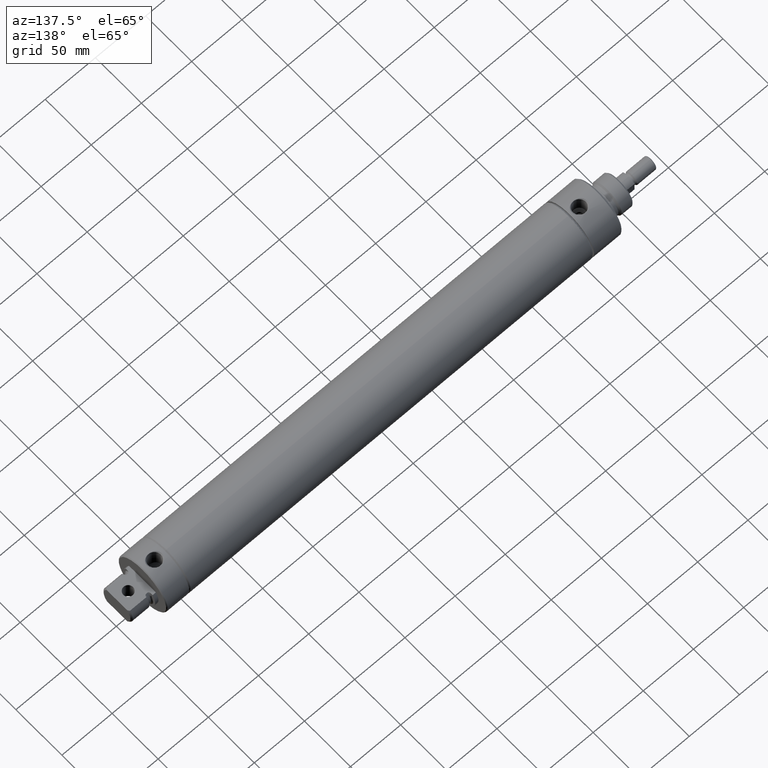
[diagram: clean part render]
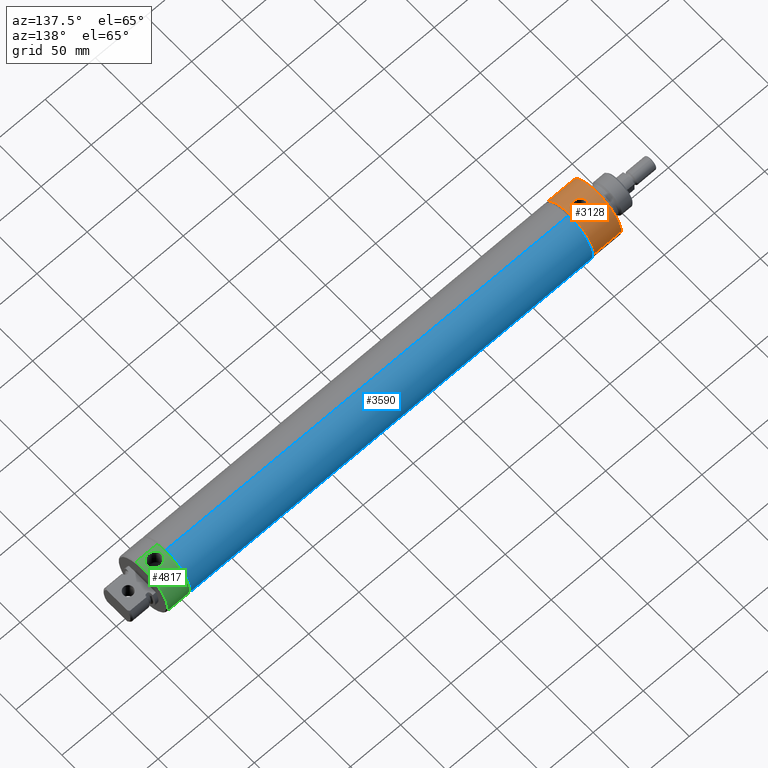
[diagram: same view with three faces highlighted in distinct colors, each labeled with its STEP entity id]
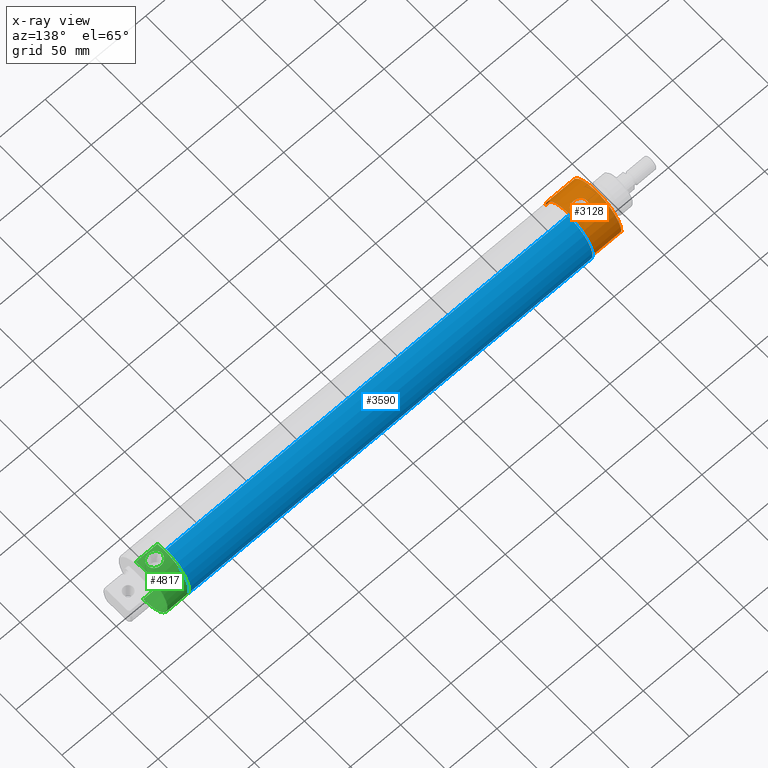
[diagram: x-ray of the same camera — body ghosted, the three highlighted faces saturated]
A machine part, auxiliary view with three faces highlighted in distinct colors.
The next image is the same camera in x-ray (body ghosted, the three faces saturated) — at least one of them is partly hidden behind the body in this view.
Their STEP definitions:

[orange] entity #3128 — the highlighted cylindrical surface (edge-blend (fillet) strip) has radius 26.543 mm, axis along (1, 0, 0).
#74 = EDGE_CURVE ( 'NONE', #5462, #816, #84, .T. ) ;
#84 = CIRCLE ( 'NONE', #3743, 26.54299999999999926 ) ;
#184 = CARTESIAN_POINT ( 'NONE',  ( 39.62400000000000233, 25.73051365881612185, 6.517017404724117391 ) ) ;
#335 = CARTESIAN_POINT ( 'NONE',  ( 43.14023609710901752, 25.91884662458859268, 5.727104617331871594 ) ) ;
#362 = CARTESIAN_POINT ( 'NONE',  ( 46.88698367355252117, 26.52865988579176104, 0.9013957518397684998 ) ) ;
#406 = CARTESIAN_POINT ( 'NONE',  ( 36.28423554758332870, 25.89727713613367044, 5.828956841975059255 ) ) ;
#415 = B_SPLINE_CURVE_WITH_KNOTS ( 'NONE', 3,
 ( #1912, #3640, #5321, #2835, #3157, #4550, #639, #1943, #4126, #2334 ),
 .UNSPECIFIED., .F., .F.,
 ( 4, 2, 2, 2, 4 ),
 ( 0.8772249320722800281, 0.9079186990542100766, 0.9386124660361400140, 0.9693062330180699515, 1.000000000000000000 ),
 .UNSPECIFIED. ) ;
#438 = CARTESIAN_POINT ( 'NONE',  ( 45.87092863978182322, 26.32442339647326079, 3.404663498634873608 ) ) ;
#558 = EDGE_LOOP ( 'NONE', ( #3817, #4529, #1038, #5351 ) ) ;
#559 = CARTESIAN_POINT ( 'NONE',  ( 22.09799999999999898, 0.000000000000000000, -26.54299999999999926 ) ) ;
#561 = DIRECTION ( 'NONE',  ( 1.000000000000000000, 0.000000000000000000, 0.000000000000000000 ) ) ;
#639 = CARTESIAN_POINT ( 'NONE',  ( 36.16681874928035256, 25.91272307576314660, -5.755330739610351465 ) ) ;
#711 = DIRECTION ( 'NONE',  ( 1.000000000000000000, 0.000000000000000000, 0.000000000000000000 ) ) ;
#781 = CARTESIAN_POINT ( 'NONE',  ( 46.11502764711448066, 26.37086896340863262, 3.024088346869883370 ) ) ;
#806 = CARTESIAN_POINT ( 'NONE',  ( 46.53108616614476034, 26.45338835064874417, 2.216681218024654676 ) ) ;
#816 = VERTEX_POINT ( 'NONE', #1741 ) ;
#822 = CARTESIAN_POINT ( 'NONE',  ( 32.62633217642768102, 26.47240357500205832, 1.960031679080467715 ) ) ;
#855 = CARTESIAN_POINT ( 'NONE',  ( 43.92838475605676507, 26.01300193777965220, -5.282817252091125404 ) ) ;
#862 = EDGE_CURVE ( 'NONE', #5462, #1008, #4026, .T. ) ;
#876 = CARTESIAN_POINT ( 'NONE',  ( 37.92050829696766812, 25.77377487747021334, 6.344456837189471621 ) ) ;
#895 = LINE ( 'NONE', #3960, #4162 ) ;
#1008 = VERTEX_POINT ( 'NONE', #4201 ) ;
#1038 = ORIENTED_EDGE ( 'NONE', *, *, #862, .F. ) ;
#1162 = DIRECTION ( 'NONE',  ( 1.000000000000000000, 0.000000000000000000, 0.000000000000000000 ) ) ;
#1168 = AXIS2_PLACEMENT_3D ( 'NONE', #2816, #711, #4561 ) ;
#1194 = CARTESIAN_POINT ( 'NONE',  ( 32.28491092509429450, 26.54477569535378123, -0.06225261957188190504 ) ) ;
#1216 = CARTESIAN_POINT ( 'NONE',  ( 39.62400000000000233, 25.73051365881612185, -6.517017404724117391 ) ) ;
#1228 = CARTESIAN_POINT ( 'NONE',  ( 44.99675941643322119, 26.17020661830747841, 4.442019751701123731 ) ) ;
#1249 = CARTESIAN_POINT ( 'NONE',  ( 34.14803566690792280, 26.18495622756673313, -4.366847542107852753 ) ) ;
#1275 = CARTESIAN_POINT ( 'NONE',  ( 41.87069624169751592, 25.80575643588554868, -6.213984018549664867 ) ) ;
#1463 = CARTESIAN_POINT ( 'NONE',  ( 34.67366194043339789, 26.10610382281469910, -4.796060069725950115 ) ) ;
#1471 = CARTESIAN_POINT ( 'NONE',  ( 40.53308354948080705, 25.74025623567958476, 6.478992480507668184 ) ) ;
#1620 = CARTESIAN_POINT ( 'NONE',  ( 41.43088959207262434, 25.77819679799991093, -6.327503864735300354 ) ) ;
#1643 = CARTESIAN_POINT ( 'NONE',  ( 44.99207615910428615, 26.16961955088395797, -4.446643277002229944 ) ) ;
#1667 = CARTESIAN_POINT ( 'NONE',  ( 45.31132268313201905, 26.22336074910520409, -4.122228526243777225 ) ) ;
#1692 = CARTESIAN_POINT ( 'NONE',  ( 46.89776055856941639, 26.53060152856586384, -0.9159533875551781890 ) ) ;
#1741 = CARTESIAN_POINT ( 'NONE',  ( 22.09799999999999187, 3.250579998976819458E-15, 26.54299999999999926 ) ) ;
#1821 = CARTESIAN_POINT ( 'NONE',  ( 39.62400000000000233, 25.73051365881612185, 6.517017404724117391 ) ) ;
#1912 = CARTESIAN_POINT ( 'NONE',  ( 39.62400000000000233, 25.73051365881612185, -6.517017404724117391 ) ) ;
#1943 = CARTESIAN_POINT ( 'NONE',  ( 35.38663359703360811, 26.00451667453823745, -5.325314866969163674 ) ) ;
#2030 = CIRCLE ( 'NONE', #2472, 26.54299999999999926 ) ;
#2033 = CARTESIAN_POINT ( 'NONE',  ( 46.22675714645677658, 26.39271146785785760, 2.827737344637569983 ) ) ;
#2083 = CARTESIAN_POINT ( 'NONE',  ( 40.07721804113106145, 25.73061452309766395, -6.517118269005661269 ) ) ;
#2134 = CARTESIAN_POINT ( 'NONE',  ( 39.62400000000000233, 25.73051365881612185, -6.517017404724117391 ) ) ;
#2204 = B_SPLINE_CURVE_WITH_KNOTS ( 'NONE', 3,
 ( #2495, #1249, #2443, #4204, #3779, #5480, #2542, #3725, #5009, #1194, #4180, #2931, #2468, #822, #3332, #5038, #4623, #2517, #4230, #406, #5506, #876, #4368, #3848, #5163, #1821 ),
 .UNSPECIFIED., .F., .F.,
 ( 4, 2, 2, 2, 2, 2, 2, 2, 2, 2, 2, 2, 4 ),
 ( 0.000000000000000000, 0.04716194033566645932, 0.07074291050349970633, 0.09432388067133296028, 0.1179048508391662142, 0.1414858210069994959, 0.1650667911748327499, 0.1886477613426660316, 0.2358097016783328170, 0.2829716420139996025, 0.3301335823496663879, 0.3537145525174997807, 0.3772955226853331734 ),
 .UNSPECIFIED. ) ;
#2334 = CARTESIAN_POINT ( 'NONE',  ( 34.67366194043339789, 26.10610382281469910, -4.796060069725950115 ) ) ;
#2355 = VECTOR ( 'NONE', #1162, 1000.000000000000000 ) ;
#2443 = CARTESIAN_POINT ( 'NONE',  ( 33.67879954980388391, 26.26758085500738105, -3.856378658306673479 ) ) ;
#2451 = CARTESIAN_POINT ( 'NONE',  ( 46.68796492407823706, 26.48628596771400012, 1.789194125948193825 ) ) ;
#2459 = FACE_BOUND ( 'NONE', #2843, .T. ) ;
#2468 = CARTESIAN_POINT ( 'NONE',  ( 32.43327580948447775, 26.51300976933473308, 1.301432608183236361 ) ) ;
#2472 = AXIS2_PLACEMENT_3D ( 'NONE', #4023, #2761, #4508 ) ;
#2495 = CARTESIAN_POINT ( 'NONE',  ( 34.67366194043339789, 26.10610382281469910, -4.796060069725950115 ) ) ;
#2517 = CARTESIAN_POINT ( 'NONE',  ( 34.55067300006395214, 26.12158029173147256, 4.736798753820318453 ) ) ;
#2542 = CARTESIAN_POINT ( 'NONE',  ( 32.55639133899532567, 26.48710293797914161, -1.752659992441376602 ) ) ;
#2547 = CARTESIAN_POINT ( 'NONE',  ( 46.95296728518824381, 26.54291881011256038, -0.4617035219768674259 ) ) ;
#2586 = DIRECTION ( 'NONE',  ( 0.000000000000000000, 0.000000000000000000, -1.000000000000000000 ) ) ;
#2653 = DIRECTION ( 'NONE',  ( 1.000000000000000000, 0.000000000000000000, 0.000000000000000000 ) ) ;
#2761 = DIRECTION ( 'NONE',  ( 1.000000000000000000, 0.000000000000000000, 0.000000000000000000 ) ) ;
#2816 = CARTESIAN_POINT ( 'NONE',  ( 58.72480000000000189, 0.000000000000000000, 0.000000000000000000 ) ) ;
#2835 = CARTESIAN_POINT ( 'NONE',  ( 37.84968840886777031, 25.77607714198116895, -6.333965639445456652 ) ) ;
#2842 = VERTEX_POINT ( 'NONE', #1463 ) ;
#2843 = EDGE_LOOP ( 'NONE', ( #2901, #3328, #4300 ) ) ;
#2863 = CARTESIAN_POINT ( 'NONE',  ( 45.73784385381399176, 26.29972732941873659, 3.589755288864965088 ) ) ;
#2901 = ORIENTED_EDGE ( 'NONE', *, *, #4128, .F. ) ;
#2907 = EDGE_CURVE ( 'NONE', #816, #3744, #895, .T. ) ;
#2931 = CARTESIAN_POINT ( 'NONE',  ( 32.36567947375057486, 26.52770875438563891, 0.9653175358748752322 ) ) ;
#2955 = CARTESIAN_POINT ( 'NONE',  ( 44.30304285166340605, 26.06436966748618644, 5.024269961739775248 ) ) ;
#3128 = ADVANCED_FACE ( 'NONE', ( #4170, #2459 ), #4109, .T. ) ;
#3157 = CARTESIAN_POINT ( 'NONE',  ( 37.41450014212166764, 25.80333924285662661, -6.224149178456367615 ) ) ;
#3309 = CARTESIAN_POINT ( 'NONE',  ( 46.95375088751951864, 26.54302493654332551, 0.2199244984061151931 ) ) ;
#3328 = ORIENTED_EDGE ( 'NONE', *, *, #4165, .F. ) ;
#3332 = CARTESIAN_POINT ( 'NONE',  ( 32.75159804456176005, 26.44656692411314225, 2.280908792111675076 ) ) ;
#3339 = CARTESIAN_POINT ( 'NONE',  ( 40.53324477620606814, 25.74062261042611510, -6.479468676788942005 ) ) ;
#3386 = CARTESIAN_POINT ( 'NONE',  ( 46.94037900167688804, 26.54010857759597286, 0.4490808701384566004 ) ) ;
#3496 = CARTESIAN_POINT ( 'NONE',  ( 49.19979999999998910, 3.250579998976819458E-15, 26.54299999999999926 ) ) ;
#3640 = CARTESIAN_POINT ( 'NONE',  ( 39.17878481677676206, 25.73056746160453301, -6.517071207512525888 ) ) ;
#3725 = CARTESIAN_POINT ( 'NONE',  ( 32.38780256168129057, 26.52284727543497667, -1.087020712407376077 ) ) ;
#3731 = CARTESIAN_POINT ( 'NONE',  ( 46.52701407691371571, 26.45257656201705387, -2.226313498767042098 ) ) ;
#3743 = AXIS2_PLACEMENT_3D ( 'NONE', #3774, #2653, #2586 ) ;
#3744 = VERTEX_POINT ( 'NONE', #3496 ) ;
#3774 = CARTESIAN_POINT ( 'NONE',  ( 22.09799999999999898, 0.000000000000000000, 0.000000000000000000 ) ) ;
#3779 = CARTESIAN_POINT ( 'NONE',  ( 32.94884617569560703, 26.40689928717717905, -2.702456018839178409 ) ) ;
#3810 = CARTESIAN_POINT ( 'NONE',  ( 46.12167722655126312, 26.37171614995926916, -3.037119387416316485 ) ) ;
#3817 = ORIENTED_EDGE ( 'NONE', *, *, #2907, .T. ) ;
#3833 = CARTESIAN_POINT ( 'NONE',  ( 45.31289318317416104, 26.22361105190517350, 4.120829919841498601 ) ) ;
#3848 = CARTESIAN_POINT ( 'NONE',  ( 38.93597926657172081, 25.73601514087748754, 6.495174511715475774 ) ) ;
#3960 = CARTESIAN_POINT ( 'NONE',  ( 22.09799999999999187, 3.250579998976819458E-15, 26.54299999999999926 ) ) ;
#4000 = CARTESIAN_POINT ( 'NONE',  ( 22.09799999999999898, 0.000000000000000000, -26.54299999999999926 ) ) ;
#4023 = CARTESIAN_POINT ( 'NONE',  ( 49.19980000000000331, 0.000000000000000000, 0.000000000000000000 ) ) ;
#4026 = LINE ( 'NONE', #4000, #2355 ) ;
#4109 = CYLINDRICAL_SURFACE ( 'NONE', #1168, 26.54299999999999926 ) ;
#4126 = CARTESIAN_POINT ( 'NONE',  ( 35.01574817022682851, 26.05478538001531419, -5.075398646864020868 ) ) ;
#4128 = EDGE_CURVE ( 'NONE', #5189, #2842, #415, .T. ) ;
#4162 = VECTOR ( 'NONE', #561, 1000.000000000000000 ) ;
#4165 = EDGE_CURVE ( 'NONE', #4564, #5189, #5008, .T. ) ;
#4170 = FACE_OUTER_BOUND ( 'NONE', #558, .T. ) ;
#4180 = CARTESIAN_POINT ( 'NONE',  ( 32.29151376238034743, 26.54348114616891152, 0.2840323935461561700 ) ) ;
#4186 = CARTESIAN_POINT ( 'NONE',  ( 43.92731059367079638, 26.01271120839635742, 5.283252968256816118 ) ) ;
#4201 = CARTESIAN_POINT ( 'NONE',  ( 49.19980000000000331, 0.000000000000000000, -26.54299999999999926 ) ) ;
#4204 = CARTESIAN_POINT ( 'NONE',  ( 33.11645612914559678, 26.37378478750274979, -3.005967972000867849 ) ) ;
#4230 = CARTESIAN_POINT ( 'NONE',  ( 35.10097499541237198, 26.03954122248297409, 5.157031345886784912 ) ) ;
#4261 = CARTESIAN_POINT ( 'NONE',  ( 43.13998674297809544, 25.91896691070996894, -5.727458655864020365 ) ) ;
#4300 = ORIENTED_EDGE ( 'NONE', *, *, #4689, .F. ) ;
#4368 = CARTESIAN_POINT ( 'NONE',  ( 38.25579052833682425, 25.75774150499447757, 6.408787762471386706 ) ) ;
#4508 = DIRECTION ( 'NONE',  ( 0.000000000000000000, 0.000000000000000000, -1.000000000000000000 ) ) ;
#4529 = ORIENTED_EDGE ( 'NONE', *, *, #4941, .F. ) ;
#4550 = CARTESIAN_POINT ( 'NONE',  ( 36.57503296546469329, 25.87134741278356032, -5.935206321155209075 ) ) ;
#4561 = DIRECTION ( 'NONE',  ( 0.000000000000000000, -1.000000000000000000, -6.123233995736766036E-17 ) ) ;
#4564 = VERTEX_POINT ( 'NONE', #5432 ) ;
#4623 = CARTESIAN_POINT ( 'NONE',  ( 33.60536259035524154, 26.27955066059942979, 3.762899522752653603 ) ) ;
#4627 = CARTESIAN_POINT ( 'NONE',  ( 41.42712978125892676, 25.77773772013776465, 6.327967258263129224 ) ) ;
#4671 = CARTESIAN_POINT ( 'NONE',  ( 42.72759969633380450, 25.87633700300263229, 5.913230358207195003 ) ) ;
#4689 = EDGE_CURVE ( 'NONE', #2842, #4564, #2204, .T. ) ;
#4941 = EDGE_CURVE ( 'NONE', #1008, #3744, #2030, .T. ) ;
#5008 = B_SPLINE_CURVE_WITH_KNOTS ( 'NONE', 3,
 ( #184, #5292, #1471, #4627, #5437, #4671, #335, #4186, #2955, #1228, #3833, #2863, #438, #781, #2033, #806, #2451, #5458, #362, #3386, #3309, #2547, #1692, #5017, #3731, #3810, #5486, #1667, #1643, #5510, #855, #4261, #5089, #1275, #1620, #3339, #2083, #2134 ),
 .UNSPECIFIED., .F., .F.,
 ( 4, 2, 2, 2, 2, 2, 2, 2, 2, 2, 2, 2, 2, 2, 2, 2, 2, 2, 4 ),
 ( 0.3772955226853331734, 0.4085411107720172685, 0.4397866988587013637, 0.4710322869453855144, 0.5022778750320695540, 0.5335234631187537602, 0.5491462571620957522, 0.5647690512054378553, 0.5960146392921221725, 0.6116374333354641646, 0.6272602273788063787, 0.6585058154654905849, 0.6897514035521746800, 0.7209969916388589972, 0.7522425797255432034, 0.7834881678122274096, 0.8147337558989116157, 0.8459793439855958219, 0.8772249320722800281 ),
 .UNSPECIFIED. ) ;
#5009 = CARTESIAN_POINT ( 'NONE',  ( 32.33330526535895899, 26.53447315712373111, -0.7489450535101798145 ) ) ;
#5017 = CARTESIAN_POINT ( 'NONE',  ( 46.68419034489431851, 26.48548562870686851, -1.800576416654704026 ) ) ;
#5038 = CARTESIAN_POINT ( 'NONE',  ( 33.20097524959007274, 26.35678472737926370, 3.198732908248924645 ) ) ;
#5089 = CARTESIAN_POINT ( 'NONE',  ( 42.72437087038102277, 25.87623882468417236, -5.914658579230219537 ) ) ;
#5163 = CARTESIAN_POINT ( 'NONE',  ( 39.28011887521390122, 25.72991136601910611, 6.516415111927103432 ) ) ;
#5189 = VERTEX_POINT ( 'NONE', #1216 ) ;
#5292 = CARTESIAN_POINT ( 'NONE',  ( 40.07965871039761652, 25.73043833328889107, 6.516942079196885729 ) ) ;
#5321 = CARTESIAN_POINT ( 'NONE',  ( 38.73240544438381505, 25.73973826661564956, -6.480488283180354081 ) ) ;
#5351 = ORIENTED_EDGE ( 'NONE', *, *, #74, .T. ) ;
#5432 = CARTESIAN_POINT ( 'NONE',  ( 39.62400000000000233, 25.73051365881612185, 6.517017404724117391 ) ) ;
#5437 = CARTESIAN_POINT ( 'NONE',  ( 41.87016359498212381, 25.80554828548713786, 6.214103039712179921 ) ) ;
#5458 = CARTESIAN_POINT ( 'NONE',  ( 46.84719207463497526, 26.52009074940311351, 1.124124474617179015 ) ) ;
#5462 = VERTEX_POINT ( 'NONE', #559 ) ;
#5480 = CARTESIAN_POINT ( 'NONE',  ( 32.67018570755300289, 26.46335250877557499, -2.078649180410466091 ) ) ;
#5486 = CARTESIAN_POINT ( 'NONE',  ( 45.87452846267566997, 26.32419496442290807, -3.419522945175560658 ) ) ;
#5506 = CARTESIAN_POINT ( 'NONE',  ( 36.92621157641592333, 25.83658747321596749, 6.087225855678553899 ) ) ;
#5510 = CARTESIAN_POINT ( 'NONE',  ( 44.29986592037458593, 26.06429838879545358, -5.027026411927631777 ) ) ;

[blue] entity #3590 — the highlighted cylindrical surface (edge-blend (fillet) strip) has radius 26.543 mm, axis along (-1, 0, 0).
#10 = DIRECTION ( 'NONE',  ( 1.000000000000000000, 0.000000000000000000, 0.000000000000000000 ) ) ;
#227 = DIRECTION ( 'NONE',  ( 0.000000000000000000, 0.000000000000000000, -1.000000000000000000 ) ) ;
#297 = EDGE_CURVE ( 'NONE', #765, #1003, #5063, .T. ) ;
#430 = CARTESIAN_POINT ( 'NONE',  ( 401.6729830283399565, 0.000000000000000000, -26.54299999999999926 ) ) ;
#445 = CIRCLE ( 'NONE', #3644, 26.54299999999999926 ) ;
#750 = FACE_OUTER_BOUND ( 'NONE', #3269, .T. ) ;
#762 = DIRECTION ( 'NONE',  ( 1.000000000000000000, 0.000000000000000000, 0.000000000000000000 ) ) ;
#765 = VERTEX_POINT ( 'NONE', #3035 ) ;
#804 = AXIS2_PLACEMENT_3D ( 'NONE', #3784, #1253, #2933 ) ;
#809 = ORIENTED_EDGE ( 'NONE', *, *, #3197, .T. ) ;
#844 = CARTESIAN_POINT ( 'NONE',  ( 1.577416971660475120, 3.250579998976819458E-15, 26.54299999999999926 ) ) ;
#983 = CARTESIAN_POINT ( 'NONE',  ( 401.6729830283399565, 0.000000000000000000, 0.000000000000000000 ) ) ;
#994 = VERTEX_POINT ( 'NONE', #844 ) ;
#1003 = VERTEX_POINT ( 'NONE', #430 ) ;
#1006 = DIRECTION ( 'NONE',  ( 1.000000000000000000, 0.000000000000000000, 0.000000000000000000 ) ) ;
#1165 = LINE ( 'NONE', #4569, #1281 ) ;
#1253 = DIRECTION ( 'NONE',  ( 1.000000000000000000, 0.000000000000000000, 0.000000000000000000 ) ) ;
#1281 = VECTOR ( 'NONE', #1993, 1000.000000000000000 ) ;
#1354 = LINE ( 'NONE', #1742, #2953 ) ;
#1681 = ORIENTED_EDGE ( 'NONE', *, *, #4053, .F. ) ;
#1742 = CARTESIAN_POINT ( 'NONE',  ( 1.577416971660682066, 0.000000000000000000, -26.54299999999999926 ) ) ;
#1993 = DIRECTION ( 'NONE',  ( 1.000000000000000000, 0.000000000000000000, 0.000000000000000000 ) ) ;
#2198 = VERTEX_POINT ( 'NONE', #3048 ) ;
#2456 = ORIENTED_EDGE ( 'NONE', *, *, #3697, .T. ) ;
#2933 = DIRECTION ( 'NONE',  ( 0.000000000000000000, 1.000000000000000000, -7.933115629819355718E-14 ) ) ;
#2953 = VECTOR ( 'NONE', #10, 1000.000000000000000 ) ;
#3035 = CARTESIAN_POINT ( 'NONE',  ( 401.6729830283400133, 0.000000000000000000, 26.54300000000004545 ) ) ;
#3048 = CARTESIAN_POINT ( 'NONE',  ( 1.577416971660475120, 0.000000000000000000, -26.54299999999999926 ) ) ;
#3197 = EDGE_CURVE ( 'NONE', #994, #2198, #445, .T. ) ;
#3269 = EDGE_LOOP ( 'NONE', ( #1681, #809, #2456, #5310 ) ) ;
#3590 = ADVANCED_FACE ( 'NONE', ( #750 ), #3730, .T. ) ;
#3626 = DIRECTION ( 'NONE',  ( 0.000000000000000000, 0.000000000000000000, -1.000000000000000000 ) ) ;
#3644 = AXIS2_PLACEMENT_3D ( 'NONE', #4585, #762, #227 ) ;
#3697 = EDGE_CURVE ( 'NONE', #2198, #1003, #1354, .T. ) ;
#3730 = CYLINDRICAL_SURFACE ( 'NONE', #804, 26.54299999999999926 ) ;
#3784 = CARTESIAN_POINT ( 'NONE',  ( 806.5008000000000266, 0.000000000000000000, 0.000000000000000000 ) ) ;
#4053 = EDGE_CURVE ( 'NONE', #994, #765, #1165, .T. ) ;
#4258 = AXIS2_PLACEMENT_3D ( 'NONE', #983, #1006, #3626 ) ;
#4569 = CARTESIAN_POINT ( 'NONE',  ( 1.577416971660454692, 3.250579998976819458E-15, 26.54299999999999926 ) ) ;
#4585 = CARTESIAN_POINT ( 'NONE',  ( 1.577416971660475120, 0.000000000000000000, 0.000000000000000000 ) ) ;
#5063 = CIRCLE ( 'NONE', #4258, 26.54299999999999926 ) ;
#5310 = ORIENTED_EDGE ( 'NONE', *, *, #297, .F. ) ;

[green] entity #4817 — the highlighted cylindrical surface (edge-blend (fillet) strip) has radius 26.543 mm, axis along (1, 0, 0).
#1 = B_SPLINE_CURVE_WITH_KNOTS ( 'NONE', 3,
 ( #4184, #2057, #777, #3756, #2470, #3651, #1455, #1894, #2371, #4503, #1066, #1482 ),
 .UNSPECIFIED., .F., .F.,
 ( 4, 2, 2, 2, 2, 4 ),
 ( 0.8726114300398014612, 0.8885350012848263201, 0.9044585725298511791, 0.9363057150199007861, 0.9681528575099503930, 1.000000000000000000 ),
 .UNSPECIFIED. ) ;
#48 = DIRECTION ( 'NONE',  ( 0.000000000000000000, 0.000000000000000000, -1.000000000000000000 ) ) ;
#52 = ORIENTED_EDGE ( 'NONE', *, *, #3325, .F. ) ;
#119 = DIRECTION ( 'NONE',  ( 1.000000000000000000, 0.000000000000000000, 0.000000000000000000 ) ) ;
#188 = CARTESIAN_POINT ( 'NONE',  ( 24.67212000245597281, -3.207502710338135277, 26.35016318232205279 ) ) ;
#243 = CARTESIAN_POINT ( 'NONE',  ( 20.09822327549678889, 6.326437656551513911, 25.77825858715552343 ) ) ;
#254 = EDGE_CURVE ( 'NONE', #2787, #4455, #1434, .T. ) ;
#275 = CARTESIAN_POINT ( 'NONE',  ( 11.68850033888679540, 2.833721099791854048, 26.39209710053570745 ) ) ;
#302 = CARTESIAN_POINT ( 'NONE',  ( 15.19109874227886792, 5.915909895044821454, 25.87558348841531242 ) ) ;
#324 = CARTESIAN_POINT ( 'NONE',  ( 23.07642570006767713, -4.934219810944438400, 26.08110679706963708 ) ) ;
#343 = VECTOR ( 'NONE', #5334, 1000.000000000000000 ) ;
#400 = CARTESIAN_POINT ( 'NONE',  ( 18.34942030116970457, -6.545011658074967542, 25.72349734083019968 ) ) ;
#474 = DIRECTION ( 'NONE',  ( 1.000000000000000000, 0.000000000000000000, 0.000000000000000000 ) ) ;
#544 = CARTESIAN_POINT ( 'NONE',  ( 7.950199999999999712, 0.000000000000000000, -26.54299999999999926 ) ) ;
#614 = CARTESIAN_POINT ( 'NONE',  ( 10.95861349229062398, 0.4561648327197896369, 26.54288276180137984 ) ) ;
#615 = VERTEX_POINT ( 'NONE', #3819 ) ;
#667 = CARTESIAN_POINT ( 'NONE',  ( 25.61750374590799595, 0.000000000000000000, 26.54299999999999926 ) ) ;
#677 = LINE ( 'NONE', #2781, #2301 ) ;
#698 = CARTESIAN_POINT ( 'NONE',  ( 12.92054521021382563, 4.447480863478657120, 26.16956737582966497 ) ) ;
#743 = CARTESIAN_POINT ( 'NONE',  ( 22.24953699616696312, -5.510765736635287126, 25.96748983900178231 ) ) ;
#777 = CARTESIAN_POINT ( 'NONE',  ( 10.97249457670926454, -0.4627008469903932664, 26.53996627200027092 ) ) ;
#802 = CARTESIAN_POINT ( 'NONE',  ( 29.46400000000000929, 0.000000000000000000, 26.54299999999999216 ) ) ;
#819 = CARTESIAN_POINT ( 'NONE',  ( 16.66568872398547541, -6.361555667885455456, 25.76990053202601061 ) ) ;
#931 = DIRECTION ( 'NONE',  ( 1.000000000000000000, 0.000000000000000000, 0.000000000000000000 ) ) ;
#945 = CARTESIAN_POINT ( 'NONE',  ( 25.61720961680558872, -0.3400553916037554747, 26.54270587089759204 ) ) ;
#972 = CARTESIAN_POINT ( 'NONE',  ( 25.46861550734432811, -1.344039112518553125, 26.51101288286042035 ) ) ;
#973 = AXIS2_PLACEMENT_3D ( 'NONE', #4296, #474, #48 ) ;
#1005 = CARTESIAN_POINT ( 'NONE',  ( 29.46399999999999864, -8.202238081694225968, 25.24389311202226338 ) ) ;
#1024 = CARTESIAN_POINT ( 'NONE',  ( 12.04564345512989831, 3.411298861054111065, 26.32355771906861719 ) ) ;
#1028 = CARTESIAN_POINT ( 'NONE',  ( 25.61750374590799595, 0.000000000000000000, 26.54299999999999926 ) ) ;
#1058 = CARTESIAN_POINT ( 'NONE',  ( 25.35079975291476728, 1.791939356268664962, 26.48597731136945299 ) ) ;
#1066 = CARTESIAN_POINT ( 'NONE',  ( 12.98276206390636922, -4.506258207209001831, 26.15934451895162383 ) ) ;
#1082 = CARTESIAN_POINT ( 'NONE',  ( 25.19240863338835723, 2.222496101742275521, 26.45280333214165225 ) ) ;
#1096 = EDGE_CURVE ( 'NONE', #4821, #615, #5026, .T. ) ;
#1113 = CARTESIAN_POINT ( 'NONE',  ( 14.77579944956060842, 5.728886390164429798, 25.91835675585075549 ) ) ;
#1242 = EDGE_LOOP ( 'NONE', ( #2726, #4178, #52, #3073, #3647 ) ) ;
#1365 = CARTESIAN_POINT ( 'NONE',  ( 21.63924315409214927, -5.822181840712210565, 25.89746688352965975 ) ) ;
#1379 = VERTEX_POINT ( 'NONE', #4576 ) ;
#1383 = CARTESIAN_POINT ( 'NONE',  ( 7.950199999999999712, 0.000000000000000000, 0.000000000000000000 ) ) ;
#1434 = LINE ( 'NONE', #3546, #343 ) ;
#1448 = CARTESIAN_POINT ( 'NONE',  ( 23.33930501698116800, -4.722718450819550995, 26.12053383749690028 ) ) ;
#1455 = CARTESIAN_POINT ( 'NONE',  ( 11.39844665160296167, -2.260422184567624448, 26.44980814252715362 ) ) ;
#1477 = B_SPLINE_CURVE_WITH_KNOTS ( 'NONE', 3,
 ( #667, #4875, #4097, #1058, #1082, #4488, #2362, #4435, #3613, #1501, #4065, #2748, #1557, #4902, #243, #5348, #3214, #2420, #4927, #302, #1113, #4521, #5408, #698, #2002, #2391, #1024, #3700, #275, #1971, #3669, #1590, #4958, #3249, #614, #2720 ),
 .UNSPECIFIED., .F., .F.,
 ( 4, 2, 2, 2, 2, 2, 2, 2, 2, 2, 2, 2, 2, 2, 2, 2, 2, 4 ),
 ( 0.3726407055713178429, 0.4038888758505980725, 0.4351370461298783021, 0.4663852164091585317, 0.4976333866884387613, 0.5288815569677189909, 0.5601297272469991650, 0.5913778975262794502, 0.6226260678055596243, 0.6851224083641200835, 0.7163705786434002576, 0.7476187489226805427, 0.7788669192019608278, 0.7944910043416009149, 0.8101150894812410019, 0.8257391746208810890, 0.8413632597605211760, 0.8726114300398014612 ),
 .UNSPECIFIED. ) ;
#1482 = CARTESIAN_POINT ( 'NONE',  ( 13.33766194043339937, -4.796060069725950115, 26.10610382281469910 ) ) ;
#1497 = EDGE_CURVE ( 'NONE', #4587, #2905, #4679, .T. ) ;
#1501 = CARTESIAN_POINT ( 'NONE',  ( 22.97049389219253257, 5.022247627437977258, 26.06533630721049732 ) ) ;
#1557 = CARTESIAN_POINT ( 'NONE',  ( 21.39703756445321758, 5.911181630067244619, 25.87707461948622623 ) ) ;
#1590 = CARTESIAN_POINT ( 'NONE',  ( 11.23853291622408257, 1.790968342301338723, 26.48337627186645094 ) ) ;
#1735 = AXIS2_PLACEMENT_3D ( 'NONE', #1383, #931, #4780 ) ;
#1805 = CARTESIAN_POINT ( 'NONE',  ( 23.83362028877069605, -4.262018628293798628, 26.19963420101415608 ) ) ;
#1857 = CARTESIAN_POINT ( 'NONE',  ( 7.950199999999999712, -8.202238081694225968, 25.24389311202226338 ) ) ;
#1894 = CARTESIAN_POINT ( 'NONE',  ( 11.81714619221232709, -3.082983303920539875, 26.36650198649754984 ) ) ;
#1916 = CARTESIAN_POINT ( 'NONE',  ( 24.06188612911927649, -4.016155573596885020, 26.23876216176135401 ) ) ;
#1918 = EDGE_CURVE ( 'NONE', #1379, #4821, #1, .T. ) ;
#1971 = CARTESIAN_POINT ( 'NONE',  ( 11.48575433287738434, 2.427804193638353425, 26.43247944999014720 ) ) ;
#2002 = CARTESIAN_POINT ( 'NONE',  ( 12.60237597714335678, 4.124168386151330523, 26.22306460950896678 ) ) ;
#2057 = CARTESIAN_POINT ( 'NONE',  ( 10.95854419612143005, -0.2324549428283141927, 26.54295205797056667 ) ) ;
#2102 = CARTESIAN_POINT ( 'NONE',  ( 19.36376933550185342, -6.452778523332634464, 25.74652169084707154 ) ) ;
#2235 = CYLINDRICAL_SURFACE ( 'NONE', #3443, 26.54300000000000281 ) ;
#2301 = VECTOR ( 'NONE', #4075, 1000.000000000000000 ) ;
#2362 = CARTESIAN_POINT ( 'NONE',  ( 24.54314764234719348, 3.413088918936669103, 26.32503897471253751 ) ) ;
#2371 = CARTESIAN_POINT ( 'NONE',  ( 12.07325598777995701, -3.471421951655945470, 26.31745054719523580 ) ) ;
#2391 = CARTESIAN_POINT ( 'NONE',  ( 12.17896853326999818, 3.596150178703306999, 26.29885456189459703 ) ) ;
#2420 = CARTESIAN_POINT ( 'NONE',  ( 17.38394296831714669, 6.517656484080544210, 25.73012673431894726 ) ) ;
#2470 = CARTESIAN_POINT ( 'NONE',  ( 11.07025306669373776, -1.151049748366177461, 26.51877739598560524 ) ) ;
#2512 = CARTESIAN_POINT ( 'NONE',  ( 17.67040617507946010, -6.522142817815183236, 25.72965921428920666 ) ) ;
#2656 = FACE_BOUND ( 'NONE', #4408, .T. ) ;
#2720 = CARTESIAN_POINT ( 'NONE',  ( 10.95849625409200634, 8.976053301764761305E-16, 26.54299999999999571 ) ) ;
#2726 = ORIENTED_EDGE ( 'NONE', *, *, #5451, .T. ) ;
#2748 = CARTESIAN_POINT ( 'NONE',  ( 21.80937869241020266, 5.724467790198140449, 25.91931366622488042 ) ) ;
#2781 = CARTESIAN_POINT ( 'NONE',  ( 7.950199999999999712, -8.202238081694225968, 25.24389311202226338 ) ) ;
#2787 = VERTEX_POINT ( 'NONE', #544 ) ;
#2847 = EDGE_CURVE ( 'NONE', #2787, #4451, #3518, .T. ) ;
#2879 = CARTESIAN_POINT ( 'NONE',  ( 16.33394268831082030, -6.286727585028378584, 25.78825904496484256 ) ) ;
#2905 = VERTEX_POINT ( 'NONE', #1005 ) ;
#2928 = CARTESIAN_POINT ( 'NONE',  ( 15.36899333528213951, -5.981381063655014430, 25.86065078506348769 ) ) ;
#2960 = DIRECTION ( 'NONE',  ( 1.000000000000000000, 0.000000000000000000, 0.000000000000000000 ) ) ;
#3073 = ORIENTED_EDGE ( 'NONE', *, *, #254, .F. ) ;
#3214 = CARTESIAN_POINT ( 'NONE',  ( 18.75107742960788570, 6.516514524717383239, 25.73053002493955077 ) ) ;
#3249 = CARTESIAN_POINT ( 'NONE',  ( 11.01302797637388409, 0.9101372553938393839, 26.53103390904999515 ) ) ;
#3325 = EDGE_CURVE ( 'NONE', #4455, #4587, #3739, .T. ) ;
#3326 = CARTESIAN_POINT ( 'NONE',  ( 13.85674359916274767, -5.219928437813976529, 26.02823321566456727 ) ) ;
#3353 = CARTESIAN_POINT ( 'NONE',  ( 14.44220388907059771, -5.574868914294951239, 25.95277568320003070 ) ) ;
#3377 = CARTESIAN_POINT ( 'NONE',  ( 20.36164577094400485, -6.255836723311770875, 25.79537969950625609 ) ) ;
#3388 = CARTESIAN_POINT ( 'NONE',  ( 29.46400000000000219, 0.000000000000000000, 0.000000000000000000 ) ) ;
#3443 = AXIS2_PLACEMENT_3D ( 'NONE', #3933, #119, #4475 ) ;
#3507 = CARTESIAN_POINT ( 'NONE',  ( 25.00468328249062111, -2.619455453426831948, 26.41504707260909157 ) ) ;
#3518 = CIRCLE ( 'NONE', #1735, 26.54299999999999926 ) ;
#3546 = CARTESIAN_POINT ( 'NONE',  ( 7.950199999999999712, 0.000000000000000000, -26.54299999999999926 ) ) ;
#3613 = CARTESIAN_POINT ( 'NONE',  ( 23.66155076736663432, 4.441283405956464314, 26.17043796530986910 ) ) ;
#3647 = ORIENTED_EDGE ( 'NONE', *, *, #2847, .T. ) ;
#3651 = CARTESIAN_POINT ( 'NONE',  ( 11.23578752944921888, -1.826852674100568397, 26.48374222002890122 ) ) ;
#3669 = CARTESIAN_POINT ( 'NONE',  ( 11.39493908349286322, 2.217791932188330595, 26.45100214753544421 ) ) ;
#3700 = CARTESIAN_POINT ( 'NONE',  ( 11.80007262342238583, 3.029356326003896704, 26.37025531645248577 ) ) ;
#3739 = CIRCLE ( 'NONE', #973, 26.54299999999999926 ) ;
#3756 = CARTESIAN_POINT ( 'NONE',  ( 11.02836328117612474, -0.9222888284179647789, 26.52782419475938624 ) ) ;
#3819 = CARTESIAN_POINT ( 'NONE',  ( 25.61750374590799595, 0.000000000000000000, 26.54299999999999926 ) ) ;
#3824 = CARTESIAN_POINT ( 'NONE',  ( 13.33766194043339937, -4.796060069725950115, 26.10610382281469910 ) ) ;
#3908 = FACE_OUTER_BOUND ( 'NONE', #1242, .T. ) ;
#3933 = CARTESIAN_POINT ( 'NONE',  ( 30.22599999999999909, 0.000000000000000000, 0.000000000000000000 ) ) ;
#4065 = CARTESIAN_POINT ( 'NONE',  ( 22.59581499831262263, 5.280616020493065221, 26.01353473957597018 ) ) ;
#4075 = DIRECTION ( 'NONE',  ( 1.000000000000000000, 0.000000000000000000, 0.000000000000000000 ) ) ;
#4091 = CARTESIAN_POINT ( 'NONE',  ( 29.46400000000000219, 0.000000000000000000, -26.54299999999999926 ) ) ;
#4097 = CARTESIAN_POINT ( 'NONE',  ( 25.56295446488509526, 0.9099787069937894657, 26.53113367579277337 ) ) ;
#4127 = ORIENTED_EDGE ( 'NONE', *, *, #1918, .F. ) ;
#4151 = EDGE_CURVE ( 'NONE', #615, #1379, #1477, .T. ) ;
#4178 = ORIENTED_EDGE ( 'NONE', *, *, #1497, .F. ) ;
#4184 = CARTESIAN_POINT ( 'NONE',  ( 10.95849625409200634, 8.976053301764761305E-16, 26.54299999999999571 ) ) ;
#4296 = CARTESIAN_POINT ( 'NONE',  ( 29.46400000000000219, 0.000000000000000000, 0.000000000000000000 ) ) ;
#4408 = EDGE_LOOP ( 'NONE', ( #4127, #4860, #4945 ) ) ;
#4435 = CARTESIAN_POINT ( 'NONE',  ( 23.97804845301579491, 4.119447758154712425, 26.22380959237541020 ) ) ;
#4451 = VERTEX_POINT ( 'NONE', #1857 ) ;
#4455 = VERTEX_POINT ( 'NONE', #4091 ) ;
#4475 = DIRECTION ( 'NONE',  ( 0.000000000000000000, -0.9876883405951377704, -0.1564344650402309245 ) ) ;
#4488 = CARTESIAN_POINT ( 'NONE',  ( 24.78897725857348888, 3.031703093093800483, 26.37248699527869178 ) ) ;
#4503 = CARTESIAN_POINT ( 'NONE',  ( 12.65452080260061329, -4.180927460592749334, 26.21411018380605995 ) ) ;
#4521 = CARTESIAN_POINT ( 'NONE',  ( 13.99095748145537854, 5.287355319731135594, 26.01203749860879810 ) ) ;
#4576 = CARTESIAN_POINT ( 'NONE',  ( 10.95849625409200634, 8.976053301764761305E-16, 26.54299999999999571 ) ) ;
#4587 = VERTEX_POINT ( 'NONE', #802 ) ;
#4663 = CARTESIAN_POINT ( 'NONE',  ( 15.68516745193171680, -6.096308539481533728, 25.83361235068446149 ) ) ;
#4679 = CIRCLE ( 'NONE', #5123, 26.54299999999999926 ) ;
#4780 = DIRECTION ( 'NONE',  ( 0.000000000000000000, 0.000000000000000000, -1.000000000000000000 ) ) ;
#4795 = CARTESIAN_POINT ( 'NONE',  ( 25.37881557239762742, -1.675982695538448919, 26.49191250240933115 ) ) ;
#4817 = ADVANCED_FACE ( 'NONE', ( #3908, #2656 ), #2235, .T. ) ;
#4821 = VERTEX_POINT ( 'NONE', #4915 ) ;
#4850 = CARTESIAN_POINT ( 'NONE',  ( 24.48284352035162570, -3.486887539536094760, 26.31431067253067724 ) ) ;
#4860 = ORIENTED_EDGE ( 'NONE', *, *, #4151, .F. ) ;
#4875 = CARTESIAN_POINT ( 'NONE',  ( 25.61709424518669920, 0.4562482397308783022, 26.54259049927869540 ) ) ;
#4902 = CARTESIAN_POINT ( 'NONE',  ( 20.54051966979388411, 6.212810512929451967, 25.80651931815747702 ) ) ;
#4915 = CARTESIAN_POINT ( 'NONE',  ( 13.33766194043339937, -4.796060069725950115, 26.10610382281469910 ) ) ;
#4927 = CARTESIAN_POINT ( 'NONE',  ( 16.47820349226009640, 6.366438508992201761, 25.76981982860273845 ) ) ;
#4945 = ORIENTED_EDGE ( 'NONE', *, *, #1096, .F. ) ;
#4958 = CARTESIAN_POINT ( 'NONE',  ( 11.17298634919889722, 1.574806218242668088, 26.49715133014991153 ) ) ;
#5026 = B_SPLINE_CURVE_WITH_KNOTS ( 'NONE', 3,
 ( #3824, #3326, #3353, #2928, #4663, #2879, #819, #2512, #400, #2102, #5500, #3377, #5084, #1365, #743, #324, #1448, #1805, #1916, #4850, #188, #3507, #5326, #4795, #972, #5267, #945, #1028 ),
 .UNSPECIFIED., .F., .F.,
 ( 4, 2, 2, 2, 2, 2, 2, 2, 2, 2, 2, 2, 2, 4 ),
 ( 0.000000000000000000, 0.04658008819641456383, 0.06987013229462188391, 0.09316017639282921092, 0.1397402645892438788, 0.1630303086874513308, 0.1863203527856587549, 0.2329004409820734089, 0.2561904850802808054, 0.2794805291784882018, 0.3027705732766955982, 0.3260606173749030501, 0.3493506614731104465, 0.3726407055713178429 ),
 .UNSPECIFIED. ) ;
#5047 = DIRECTION ( 'NONE',  ( 0.000000000000000000, 0.000000000000000000, -1.000000000000000000 ) ) ;
#5084 = CARTESIAN_POINT ( 'NONE',  ( 20.68542905848928726, -6.163068202149813324, 25.81787234745564774 ) ) ;
#5123 = AXIS2_PLACEMENT_3D ( 'NONE', #3388, #2960, #5047 ) ;
#5267 = CARTESIAN_POINT ( 'NONE',  ( 25.58718918780745355, -0.6789745247828010699, 26.53642175907751621 ) ) ;
#5326 = CARTESIAN_POINT ( 'NONE',  ( 25.14806665229873772, -2.310010080125264320, 26.44422378668029339 ) ) ;
#5334 = DIRECTION ( 'NONE',  ( 1.000000000000000000, 0.000000000000000000, 0.000000000000000000 ) ) ;
#5348 = CARTESIAN_POINT ( 'NONE',  ( 19.20550244990178967, 6.477930266266759496, 25.74042309912534776 ) ) ;
#5408 = CARTESIAN_POINT ( 'NONE',  ( 13.61548320033360859, 5.029837058588975118, 26.06396649914707098 ) ) ;
#5451 = EDGE_CURVE ( 'NONE', #4451, #2905, #677, .T. ) ;
#5500 = CARTESIAN_POINT ( 'NONE',  ( 19.70023426194240201, -6.400932450859447620, 25.75964257448521977 ) ) ;